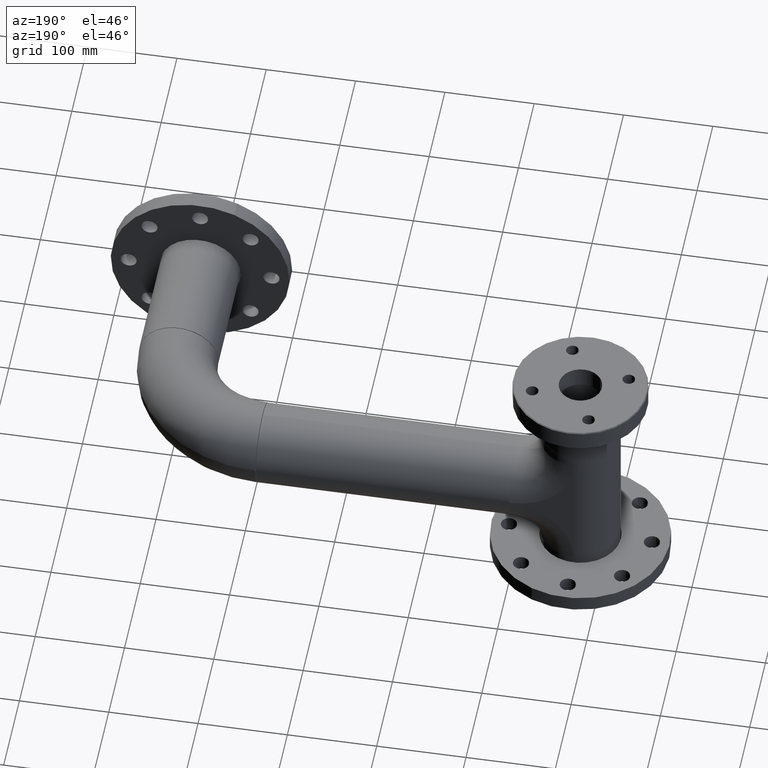
[diagram: clean part render]
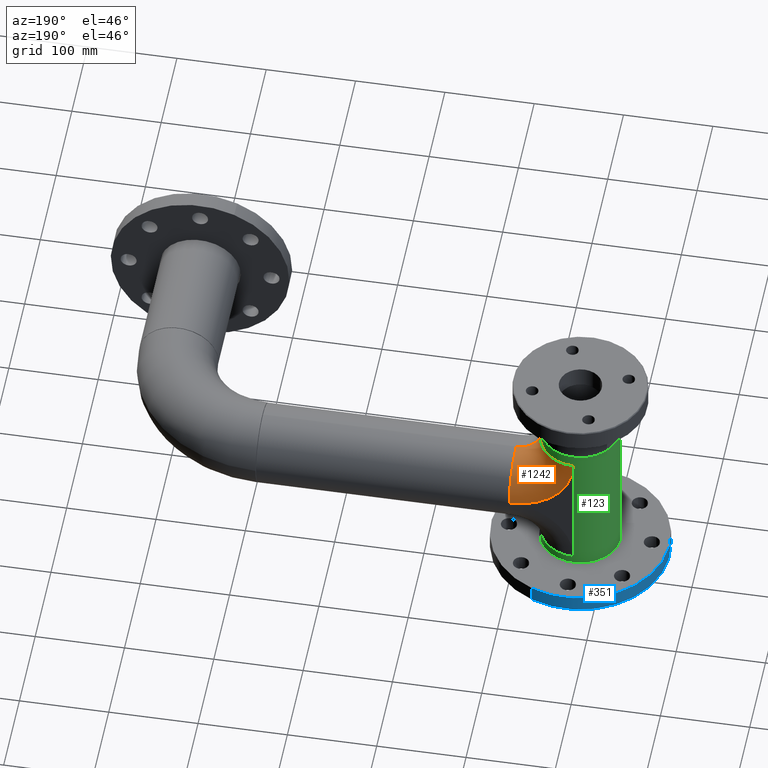
[diagram: same view with three faces highlighted in distinct colors, each labeled with its STEP entity id]
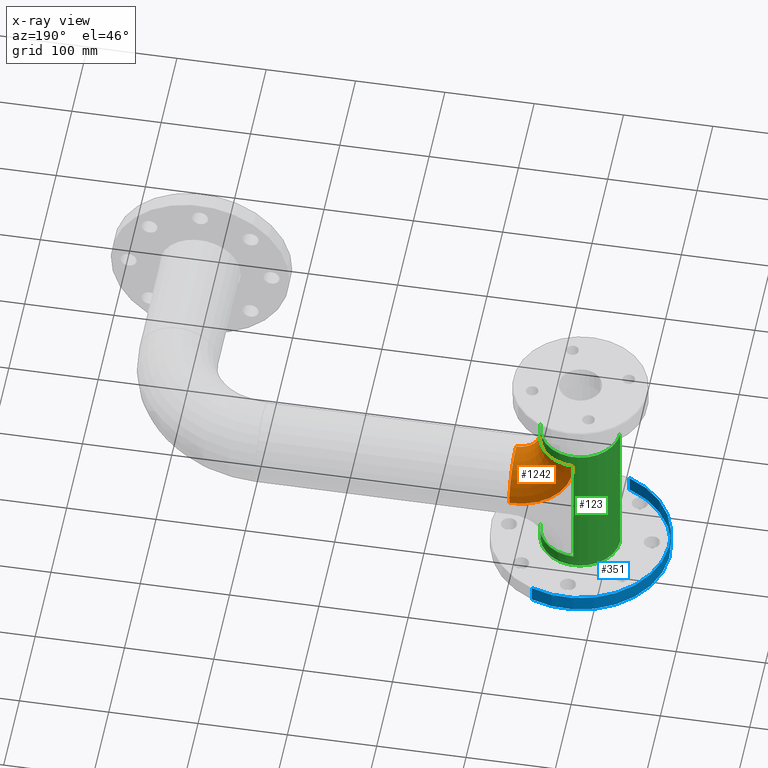
[diagram: x-ray of the same camera — body ghosted, the three highlighted faces saturated]
A machine part, auxiliary view with three faces highlighted in distinct colors.
The next image is the same camera in x-ray (body ghosted, the three faces saturated) — at least one of them is partly hidden behind the body in this view.
Their STEP definitions:

[orange] entity #1242 — the highlighted toroidal blend (fillet) surface has major radius 71.95 mm and minor (blend) radius 44.45 mm.
#280 = EDGE_CURVE ( 'NONE', #732, #2602, #2238, .T. ) ;
#290 = DIRECTION ( 'NONE',  ( 0.000000000000000000, 0.000000000000000000, -1.000000000000000000 ) ) ;
#330 = AXIS2_PLACEMENT_3D ( 'NONE', #2785, #2152, #3216 ) ;
#374 = DIRECTION ( 'NONE',  ( 0.000000000000000000, 0.000000000000000000, -1.000000000000000000 ) ) ;
#509 = ORIENTED_EDGE ( 'NONE', *, *, #3118, .T. ) ;
#732 = VERTEX_POINT ( 'NONE', #2366 ) ;
#753 = AXIS2_PLACEMENT_3D ( 'NONE', #1571, #1300, #290 ) ;
#809 = CIRCLE ( 'NONE', #2015, 44.44999999999999574 ) ;
#854 = AXIS2_PLACEMENT_3D ( 'NONE', #2721, #1657, #374 ) ;
#928 = EDGE_LOOP ( 'NONE', ( #2135, #509, #2653, #1497 ) ) ;
#1048 = CIRCLE ( 'NONE', #1923, 44.44999999999999574 ) ;
#1113 = DIRECTION ( 'NONE',  ( 1.000000000000000000, 0.000000000000000000, 0.000000000000000000 ) ) ;
#1164 = EDGE_CURVE ( 'NONE', #1704, #732, #809, .T. ) ;
#1178 = CARTESIAN_POINT ( 'NONE',  ( 0.000000000000000000, 71.95000000000001705, 5.291052640762398742E-15 ) ) ;
#1195 = VERTEX_POINT ( 'NONE', #1284 ) ;
#1242 = ADVANCED_FACE ( 'NONE', ( #2859 ), #2241, .T. ) ;
#1269 = CIRCLE ( 'NONE', #330, 27.50000000000000355 ) ;
#1284 = CARTESIAN_POINT ( 'NONE',  ( 0.000000000000000000, 44.44999999999998863, 71.95000000000003126 ) ) ;
#1300 = DIRECTION ( 'NONE',  ( 1.000000000000000000, 0.000000000000000000, 0.000000000000000000 ) ) ;
#1415 = CARTESIAN_POINT ( 'NONE',  ( -44.45000000000000284, -1.387778780781445676E-14, 71.95000000000003126 ) ) ;
#1497 = ORIENTED_EDGE ( 'NONE', *, *, #280, .T. ) ;
#1571 = CARTESIAN_POINT ( 'NONE',  ( 0.000000000000000000, 71.95000000000000284, 71.95000000000001705 ) ) ;
#1657 = DIRECTION ( 'NONE',  ( -1.000000000000000000, -0.000000000000000000, -0.000000000000000000 ) ) ;
#1704 = VERTEX_POINT ( 'NONE', #1792 ) ;
#1792 = CARTESIAN_POINT ( 'NONE',  ( 0.000000000000000000, 71.95000000000000284, 44.45000000000000284 ) ) ;
#1923 = AXIS2_PLACEMENT_3D ( 'NONE', #2434, #2704, #1113 ) ;
#2015 = AXIS2_PLACEMENT_3D ( 'NONE', #1178, #2240, #3385 ) ;
#2135 = ORIENTED_EDGE ( 'NONE', *, *, #2716, .F. ) ;
#2152 = DIRECTION ( 'NONE',  ( 1.000000000000000000, 0.000000000000000000, 0.000000000000000000 ) ) ;
#2238 = CIRCLE ( 'NONE', #854, 71.95000000000001705 ) ;
#2240 = DIRECTION ( 'NONE',  ( 0.000000000000000000, -1.000000000000000000, -2.460047082997561534E-16 ) ) ;
#2241 = TOROIDAL_SURFACE ( 'NONE', #753, 71.95000000000000284, 44.44999999999999574 ) ;
#2366 = CARTESIAN_POINT ( 'NONE',  ( -44.44999999999999574, 71.95000000000001705, 5.291052640762401897E-15 ) ) ;
#2434 = CARTESIAN_POINT ( 'NONE',  ( 0.000000000000000000, -8.586735167052057225E-15, 71.95000000000003126 ) ) ;
#2602 = VERTEX_POINT ( 'NONE', #1415 ) ;
#2653 = ORIENTED_EDGE ( 'NONE', *, *, #1164, .T. ) ;
#2704 = DIRECTION ( 'NONE',  ( 0.000000000000000000, 0.000000000000000000, 1.000000000000000000 ) ) ;
#2716 = EDGE_CURVE ( 'NONE', #1195, #2602, #1048, .T. ) ;
#2721 = CARTESIAN_POINT ( 'NONE',  ( -44.45000000000000284, 71.95000000000000284, 71.95000000000001705 ) ) ;
#2785 = CARTESIAN_POINT ( 'NONE',  ( -5.443555022209984909E-15, 71.95000000000000284, 71.95000000000001705 ) ) ;
#2859 = FACE_OUTER_BOUND ( 'NONE', #928, .T. ) ;
#3118 = EDGE_CURVE ( 'NONE', #1195, #1704, #1269, .T. ) ;
#3216 = DIRECTION ( 'NONE',  ( 0.000000000000000000, 0.000000000000000000, -1.000000000000000000 ) ) ;
#3385 = DIRECTION ( 'NONE',  ( 1.000000000000000000, 0.000000000000000000, 0.000000000000000000 ) ) ;

[blue] entity #351 — the highlighted cylindrical surface (partial cylindrical patch) has radius 100 mm, axis along (0, -0, -1).
#87 = CARTESIAN_POINT ( 'NONE',  ( -100.0000000000000000, 1.224646799147357950E-14, -20.00000000000001776 ) ) ;
#149 = DIRECTION ( 'NONE',  ( 1.000000000000000000, 0.000000000000000000, 0.000000000000000000 ) ) ;
#189 = DIRECTION ( 'NONE',  ( -1.694415919833517605E-31, -6.454177765046521044E-30, 1.000000000000000000 ) ) ;
#200 = AXIS2_PLACEMENT_3D ( 'NONE', #1890, #2706, #1101 ) ;
#202 = CARTESIAN_POINT ( 'NONE',  ( 100.0000000000000000, 0.000000000000000000, -2.496261458903044530E-29 ) ) ;
#215 = ORIENTED_EDGE ( 'NONE', *, *, #1085, .F. ) ;
#351 = ADVANCED_FACE ( 'NONE', ( #1353 ), #2413, .T. ) ;
#640 = CARTESIAN_POINT ( 'NONE',  ( 100.0000000000000000, 0.000000000000000000, -2.000000000000001776 ) ) ;
#697 = DIRECTION ( 'NONE',  ( -1.694415919833517605E-31, -6.454177765046521044E-30, 1.000000000000000000 ) ) ;
#903 = EDGE_CURVE ( 'NONE', #2110, #1203, #2939, .T. ) ;
#946 = CARTESIAN_POINT ( 'NONE',  ( 0.000000000000000000, 0.000000000000000000, -20.00000000000001776 ) ) ;
#953 = EDGE_LOOP ( 'NONE', ( #1445, #1420, #1315, #215 ) ) ;
#988 = EDGE_CURVE ( 'NONE', #3068, #1644, #1196, .T. ) ;
#1085 = EDGE_CURVE ( 'NONE', #1203, #1644, #2907, .T. ) ;
#1101 = DIRECTION ( 'NONE',  ( 1.000000000000000000, 0.000000000000000000, -2.496261458903044635E-31 ) ) ;
#1125 = CARTESIAN_POINT ( 'NONE',  ( 100.0000000000000000, 0.000000000000000000, -20.00000000000001776 ) ) ;
#1131 = AXIS2_PLACEMENT_3D ( 'NONE', #2513, #1253, #149 ) ;
#1196 = LINE ( 'NONE', #202, #2463 ) ;
#1203 = VERTEX_POINT ( 'NONE', #1835 ) ;
#1236 = DIRECTION ( 'NONE',  ( 1.000000000000000000, 0.000000000000000000, 0.000000000000000000 ) ) ;
#1253 = DIRECTION ( 'NONE',  ( -1.694415919833517605E-31, -6.454177765046521044E-30, 1.000000000000000000 ) ) ;
#1315 = ORIENTED_EDGE ( 'NONE', *, *, #988, .T. ) ;
#1353 = FACE_OUTER_BOUND ( 'NONE', #953, .T. ) ;
#1395 = DIRECTION ( 'NONE',  ( -1.694415919833517605E-31, -6.454177765046521044E-30, 1.000000000000000000 ) ) ;
#1420 = ORIENTED_EDGE ( 'NONE', *, *, #2822, .T. ) ;
#1445 = ORIENTED_EDGE ( 'NONE', *, *, #903, .F. ) ;
#1516 = VECTOR ( 'NONE', #1395, 1000.000000000000000 ) ;
#1644 = VERTEX_POINT ( 'NONE', #640 ) ;
#1835 = CARTESIAN_POINT ( 'NONE',  ( -100.0000000000000000, 1.224646799147357950E-14, -2.000000000000001776 ) ) ;
#1890 = CARTESIAN_POINT ( 'NONE',  ( 0.000000000000000000, 0.000000000000000000, 0.000000000000000000 ) ) ;
#2037 = AXIS2_PLACEMENT_3D ( 'NONE', #946, #189, #1236 ) ;
#2110 = VERTEX_POINT ( 'NONE', #87 ) ;
#2413 = CYLINDRICAL_SURFACE ( 'NONE', #200, 100.0000000000000000 ) ;
#2463 = VECTOR ( 'NONE', #697, 1000.000000000000000 ) ;
#2483 = CIRCLE ( 'NONE', #2037, 100.0000000000000000 ) ;
#2513 = CARTESIAN_POINT ( 'NONE',  ( -1.232595164407830946E-29, 0.000000000000000000, -2.000000000000001776 ) ) ;
#2706 = DIRECTION ( 'NONE',  ( -1.694415919833517605E-31, -6.454177765046521044E-30, 1.000000000000000000 ) ) ;
#2719 = CARTESIAN_POINT ( 'NONE',  ( -100.0000000000000000, 1.224646799147350850E-14, 2.496261458903052097E-29 ) ) ;
#2822 = EDGE_CURVE ( 'NONE', #2110, #3068, #2483, .T. ) ;
#2907 = CIRCLE ( 'NONE', #1131, 100.0000000000000000 ) ;
#2939 = LINE ( 'NONE', #2719, #1516 ) ;
#3068 = VERTEX_POINT ( 'NONE', #1125 ) ;

[green] entity #123 — the highlighted cylindrical surface (partial cylindrical patch) has radius 44.45 mm, axis along (-0, 0, -1).
#4 = VECTOR ( 'NONE', #1525, 1000.000000000000000 ) ;
#123 = ADVANCED_FACE ( 'NONE', ( #1759 ), #3049, .T. ) ;
#154 = LINE ( 'NONE', #2558, #1475 ) ;
#165 = ORIENTED_EDGE ( 'NONE', *, *, #3150, .T. ) ;
#172 = CARTESIAN_POINT ( 'NONE',  ( 0.000000000000000000, 44.44999999999998863, -71.95000000000003126 ) ) ;
#177 = CARTESIAN_POINT ( 'NONE',  ( -44.45000000000000284, -1.387778780781445676E-14, 71.95000000000003126 ) ) ;
#231 = DIRECTION ( 'NONE',  ( 0.000000000000000000, -2.460047082997561534E-16, -1.000000000000000000 ) ) ;
#304 = CIRCLE ( 'NONE', #3186, 44.44999999999999574 ) ;
#306 = EDGE_CURVE ( 'NONE', #1355, #1007, #2068, .T. ) ;
#391 = VERTEX_POINT ( 'NONE', #2174 ) ;
#615 = DIRECTION ( 'NONE',  ( 0.000000000000000000, 0.000000000000000000, 1.000000000000000000 ) ) ;
#673 = DIRECTION ( 'NONE',  ( 0.000000000000000000, 1.000000000000000000, -3.122111992759157964E-16 ) ) ;
#830 = EDGE_CURVE ( 'NONE', #2387, #3137, #304, .T. ) ;
#855 = DIRECTION ( 'NONE',  ( 1.000000000000000000, 0.000000000000000000, 0.000000000000000000 ) ) ;
#867 = LINE ( 'NONE', #2184, #1577 ) ;
#968 = EDGE_LOOP ( 'NONE', ( #2876, #1458, #1261, #2616, #165, #3360, #1983, #1808 ) ) ;
#1007 = VERTEX_POINT ( 'NONE', #1743 ) ;
#1048 = CIRCLE ( 'NONE', #1923, 44.44999999999999574 ) ;
#1113 = DIRECTION ( 'NONE',  ( 1.000000000000000000, 0.000000000000000000, 0.000000000000000000 ) ) ;
#1195 = VERTEX_POINT ( 'NONE', #1284 ) ;
#1205 = DIRECTION ( 'NONE',  ( 0.000000000000000000, -2.460047082997561534E-16, -1.000000000000000000 ) ) ;
#1228 = CARTESIAN_POINT ( 'NONE',  ( 0.000000000000000000, -5.204170427930421283E-15, 85.70000000000000284 ) ) ;
#1261 = ORIENTED_EDGE ( 'NONE', *, *, #2360, .T. ) ;
#1284 = CARTESIAN_POINT ( 'NONE',  ( 0.000000000000000000, 44.44999999999998863, 71.95000000000003126 ) ) ;
#1322 = VECTOR ( 'NONE', #231, 1000.000000000000000 ) ;
#1349 = EDGE_CURVE ( 'NONE', #2778, #3137, #867, .T. ) ;
#1355 = VERTEX_POINT ( 'NONE', #1392 ) ;
#1360 = DIRECTION ( 'NONE',  ( 0.000000000000000000, -2.460047082997561534E-16, -1.000000000000000000 ) ) ;
#1392 = CARTESIAN_POINT ( 'NONE',  ( 0.000000000000000000, 44.44999999999998863, 85.70000000000000284 ) ) ;
#1415 = CARTESIAN_POINT ( 'NONE',  ( -44.45000000000000284, -1.387778780781445676E-14, 71.95000000000003126 ) ) ;
#1427 = DIRECTION ( 'NONE',  ( 0.000000000000000000, -2.460047082997561534E-16, -1.000000000000000000 ) ) ;
#1458 = ORIENTED_EDGE ( 'NONE', *, *, #306, .F. ) ;
#1475 = VECTOR ( 'NONE', #1205, 1000.000000000000000 ) ;
#1476 = CARTESIAN_POINT ( 'NONE',  ( 5.443555022209984909E-15, -44.45000000000000284, 85.70000000000001705 ) ) ;
#1525 = DIRECTION ( 'NONE',  ( 0.000000000000000000, 1.224646799147353207E-16, -1.000000000000000000 ) ) ;
#1570 = DIRECTION ( 'NONE',  ( 1.000000000000000000, 0.000000000000000000, 0.000000000000000000 ) ) ;
#1577 = VECTOR ( 'NONE', #1360, 1000.000000000000000 ) ;
#1743 = CARTESIAN_POINT ( 'NONE',  ( 5.443555022209984909E-15, -44.45000000000000284, 85.70000000000000284 ) ) ;
#1759 = FACE_OUTER_BOUND ( 'NONE', #968, .T. ) ;
#1783 = AXIS2_PLACEMENT_3D ( 'NONE', #1926, #615, #3282 ) ;
#1808 = ORIENTED_EDGE ( 'NONE', *, *, #830, .F. ) ;
#1859 = CARTESIAN_POINT ( 'NONE',  ( 5.443555022209984909E-15, -44.45000000000000284, -85.70000000000000284 ) ) ;
#1884 = DIRECTION ( 'NONE',  ( -0.000000000000000000, 0.000000000000000000, -1.000000000000000000 ) ) ;
#1897 = CARTESIAN_POINT ( 'NONE',  ( 0.000000000000000000, -8.586735167052057225E-15, -71.95000000000003126 ) ) ;
#1923 = AXIS2_PLACEMENT_3D ( 'NONE', #2434, #2704, #1113 ) ;
#1926 = CARTESIAN_POINT ( 'NONE',  ( 0.000000000000000000, -5.204170427930421283E-15, 85.70000000000000284 ) ) ;
#1983 = ORIENTED_EDGE ( 'NONE', *, *, #1349, .T. ) ;
#2038 = CARTESIAN_POINT ( 'NONE',  ( 0.000000000000000000, 44.44999999999998863, -85.70000000000000284 ) ) ;
#2068 = CIRCLE ( 'NONE', #1783, 44.44999999999999574 ) ;
#2151 = AXIS2_PLACEMENT_3D ( 'NONE', #1897, #1884, #1570 ) ;
#2174 = CARTESIAN_POINT ( 'NONE',  ( -44.45000000000000284, 3.744879631915966721E-15, -71.95000000000005969 ) ) ;
#2184 = CARTESIAN_POINT ( 'NONE',  ( 0.000000000000000000, 44.44999999999998863, 85.69999999999998863 ) ) ;
#2188 = DIRECTION ( 'NONE',  ( -0.000000000000000000, 0.000000000000000000, -1.000000000000000000 ) ) ;
#2360 = EDGE_CURVE ( 'NONE', #1355, #1195, #154, .T. ) ;
#2387 = VERTEX_POINT ( 'NONE', #1859 ) ;
#2434 = CARTESIAN_POINT ( 'NONE',  ( 0.000000000000000000, -8.586735167052057225E-15, 71.95000000000003126 ) ) ;
#2545 = LINE ( 'NONE', #177, #4 ) ;
#2558 = CARTESIAN_POINT ( 'NONE',  ( 0.000000000000000000, 44.44999999999998863, 85.69999999999998863 ) ) ;
#2602 = VERTEX_POINT ( 'NONE', #1415 ) ;
#2616 = ORIENTED_EDGE ( 'NONE', *, *, #2716, .T. ) ;
#2704 = DIRECTION ( 'NONE',  ( 0.000000000000000000, 0.000000000000000000, 1.000000000000000000 ) ) ;
#2716 = EDGE_CURVE ( 'NONE', #1195, #2602, #1048, .T. ) ;
#2778 = VERTEX_POINT ( 'NONE', #172 ) ;
#2788 = AXIS2_PLACEMENT_3D ( 'NONE', #1228, #1427, #673 ) ;
#2876 = ORIENTED_EDGE ( 'NONE', *, *, #3124, .F. ) ;
#2927 = CIRCLE ( 'NONE', #2151, 44.44999999999999574 ) ;
#2964 = CARTESIAN_POINT ( 'NONE',  ( 0.000000000000000000, -5.204170427930421283E-15, -85.70000000000000284 ) ) ;
#3049 = CYLINDRICAL_SURFACE ( 'NONE', #2788, 44.44999999999999574 ) ;
#3124 = EDGE_CURVE ( 'NONE', #1007, #2387, #3327, .T. ) ;
#3137 = VERTEX_POINT ( 'NONE', #2038 ) ;
#3150 = EDGE_CURVE ( 'NONE', #2602, #391, #2545, .T. ) ;
#3186 = AXIS2_PLACEMENT_3D ( 'NONE', #2964, #2188, #855 ) ;
#3282 = DIRECTION ( 'NONE',  ( 1.000000000000000000, 0.000000000000000000, 0.000000000000000000 ) ) ;
#3297 = EDGE_CURVE ( 'NONE', #391, #2778, #2927, .T. ) ;
#3327 = LINE ( 'NONE', #1476, #1322 ) ;
#3360 = ORIENTED_EDGE ( 'NONE', *, *, #3297, .T. ) ;